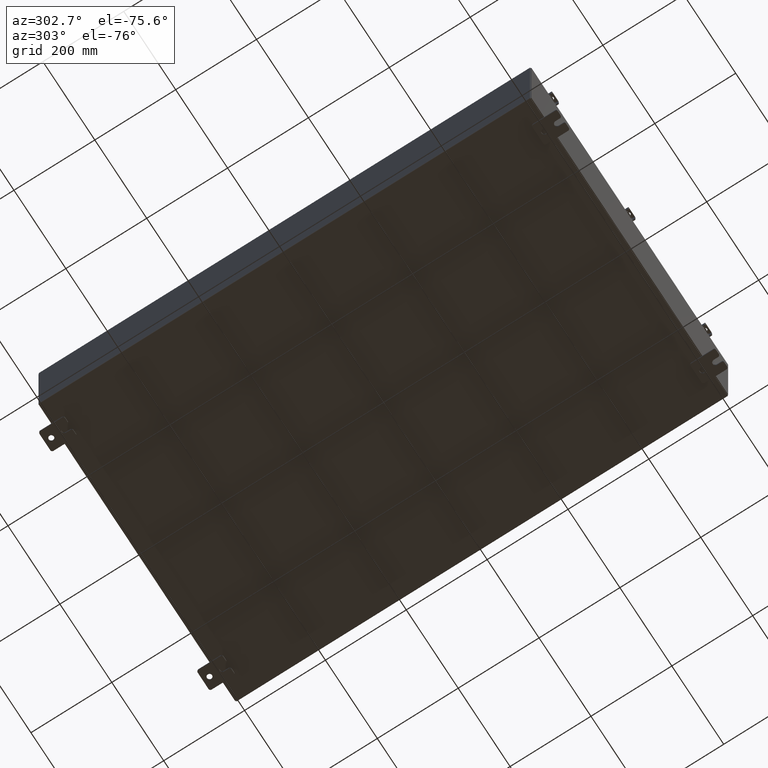
[diagram: clean part render]
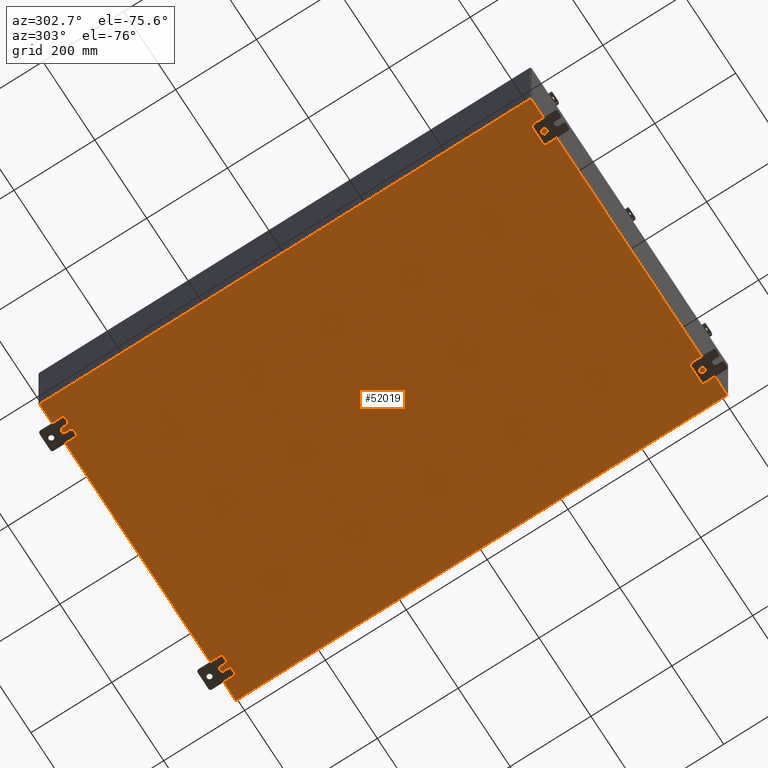
[diagram: same view with one face highlighted and labeled with its STEP entity id]
A machine part, auxiliary view. The second image highlights one B-rep face of the part: STEP entity #52019.
In plain terms, the highlighted planar face has unit normal (0, 0, -1).
Its self-contained STEP definition (entity closure, byte-faithful):
#3076 = CARTESIAN_POINT ( 'NONE',  ( 14.91229999999999800, 23.92529999999998900, -0.07470000000000300000 ) ) ;
#3143 = ORIENTED_EDGE ( 'NONE', *, *, #21985, .T. ) ;
#3255 = CARTESIAN_POINT ( 'NONE',  ( -14.91230000000000200, -23.92529999999998900, -0.07469999999999996100 ) ) ;
#4771 = DIRECTION ( 'NONE',  ( -1.000000000000000000, -0.0000000000000000000, -0.0000000000000000000 ) ) ;
#6308 = LINE ( 'NONE', #36024, #26655 ) ;
#7384 = DIRECTION ( 'NONE',  ( -0.0000000000000000000, 1.000000000000000000, -0.0000000000000000000 ) ) ;
#12385 = VECTOR ( 'NONE', #37029, 39.37007874015748100 ) ;
#12538 = AXIS2_PLACEMENT_3D ( 'NONE', #34984, #22893, #51325 ) ;
#16712 = VERTEX_POINT ( 'NONE', #30095 ) ;
#19304 = EDGE_CURVE ( 'NONE', #45883, #16712, #6308, .T. ) ;
#20674 = CARTESIAN_POINT ( 'NONE',  ( 14.91229999999999800, 23.92530000000000000, -0.07470000000000300000 ) ) ;
#21260 = VECTOR ( 'NONE', #7384, 39.37007874015748100 ) ;
#21985 = EDGE_CURVE ( 'NONE', #38821, #16712, #23183, .T. ) ;
#22893 = DIRECTION ( 'NONE',  ( 0.0000000000000000000, 0.0000000000000000000, -1.000000000000000000 ) ) ;
#23183 = LINE ( 'NONE', #20674, #12385 ) ;
#25061 = CARTESIAN_POINT ( 'NONE',  ( -15.00000000000000400, 23.92530000000000400, -0.07469999999999998900 ) ) ;
#25680 = FACE_OUTER_BOUND ( 'NONE', #52279, .T. ) ;
#26217 = VERTEX_POINT ( 'NONE', #47215 ) ;
#26655 = VECTOR ( 'NONE', #44239, 39.37007874015748100 ) ;
#29470 = ORIENTED_EDGE ( 'NONE', *, *, #38830, .T. ) ;
#30095 = CARTESIAN_POINT ( 'NONE',  ( 14.91229999999999800, -23.92529999999999600, -0.07469999999999998900 ) ) ;
#30620 = LINE ( 'NONE', #25061, #52212 ) ;
#34984 = CARTESIAN_POINT ( 'NONE',  ( 0.0000000000000000000, 0.0000000000000000000, -0.07469999999999998900 ) ) ;
#35350 = ORIENTED_EDGE ( 'NONE', *, *, #19304, .F. ) ;
#36024 = CARTESIAN_POINT ( 'NONE',  ( -15.00000000000000400, -23.92530000000000000, -0.07469999999999998900 ) ) ;
#37029 = DIRECTION ( 'NONE',  ( -0.0000000000000000000, -1.000000000000000000, 8.208677865577646300E-017 ) ) ;
#38821 = VERTEX_POINT ( 'NONE', #3076 ) ;
#38830 = EDGE_CURVE ( 'NONE', #45883, #26217, #42909, .T. ) ;
#42909 = LINE ( 'NONE', #3255, #21260 ) ;
#44239 = DIRECTION ( 'NONE',  ( 1.000000000000000000, 1.456985596620940400E-016, 0.0000000000000000000 ) ) ;
#45883 = VERTEX_POINT ( 'NONE', #51270 ) ;
#46717 = ORIENTED_EDGE ( 'NONE', *, *, #46814, .F. ) ;
#46814 = EDGE_CURVE ( 'NONE', #38821, #26217, #30620, .T. ) ;
#47215 = CARTESIAN_POINT ( 'NONE',  ( -14.91230000000000200, 23.92529999999998900, -0.07469999999999998900 ) ) ;
#47274 = PLANE ( 'NONE',  #12538 ) ;
#51270 = CARTESIAN_POINT ( 'NONE',  ( -14.91230000000000200, -23.92529999999998200, -0.07469999999999996100 ) ) ;
#51325 = DIRECTION ( 'NONE',  ( -1.000000000000000000, 0.0000000000000000000, -0.0000000000000000000 ) ) ;
#52019 = ADVANCED_FACE ( 'NONE', ( #25680 ), #47274, .T. ) ;
#52212 = VECTOR ( 'NONE', #4771, 39.37007874015748100 ) ;
#52279 = EDGE_LOOP ( 'NONE', ( #35350, #29470, #46717, #3143 ) ) ;